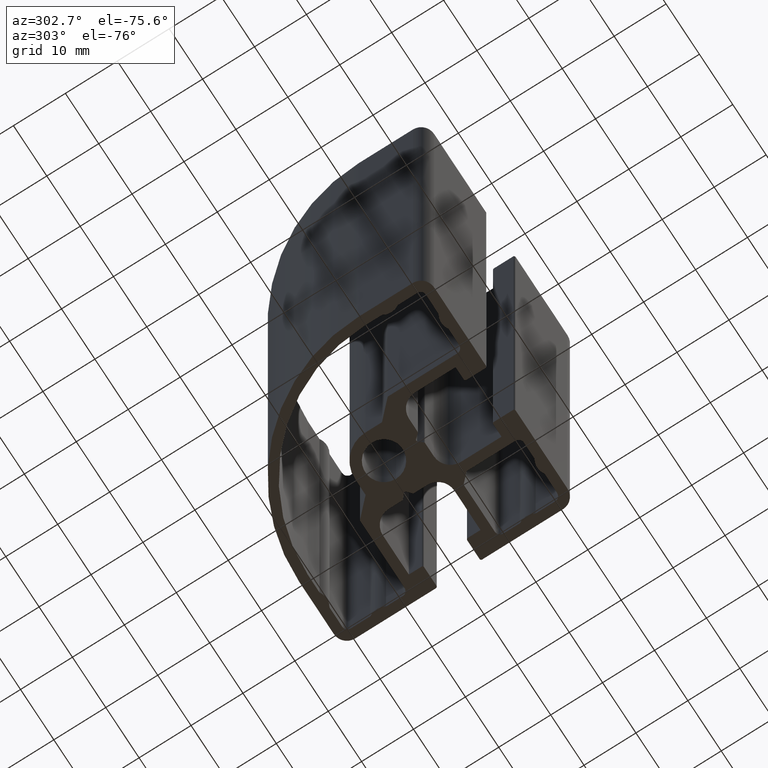
[diagram: clean part render]
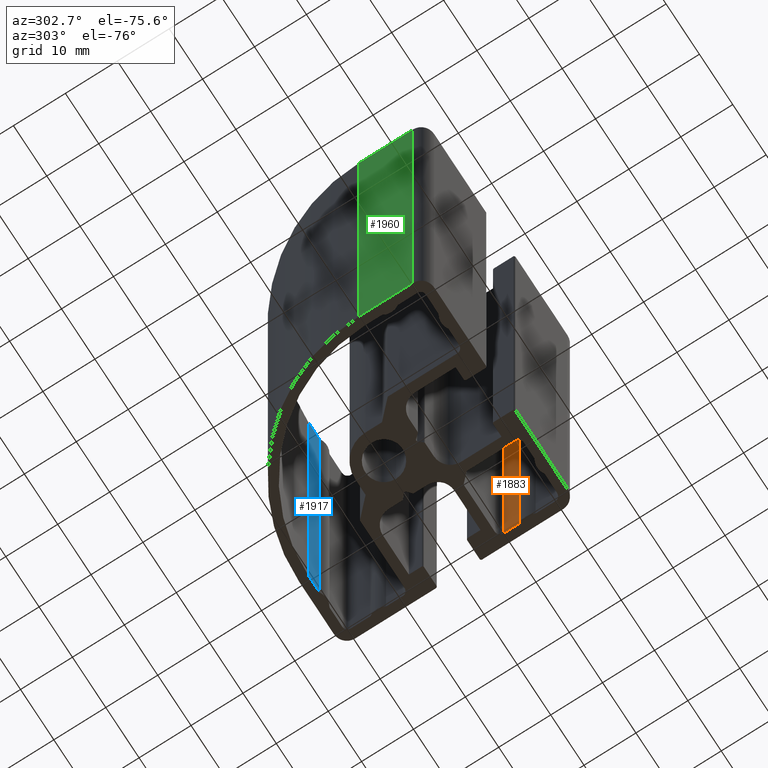
[diagram: same view with three faces highlighted in distinct colors, each labeled with its STEP entity id]
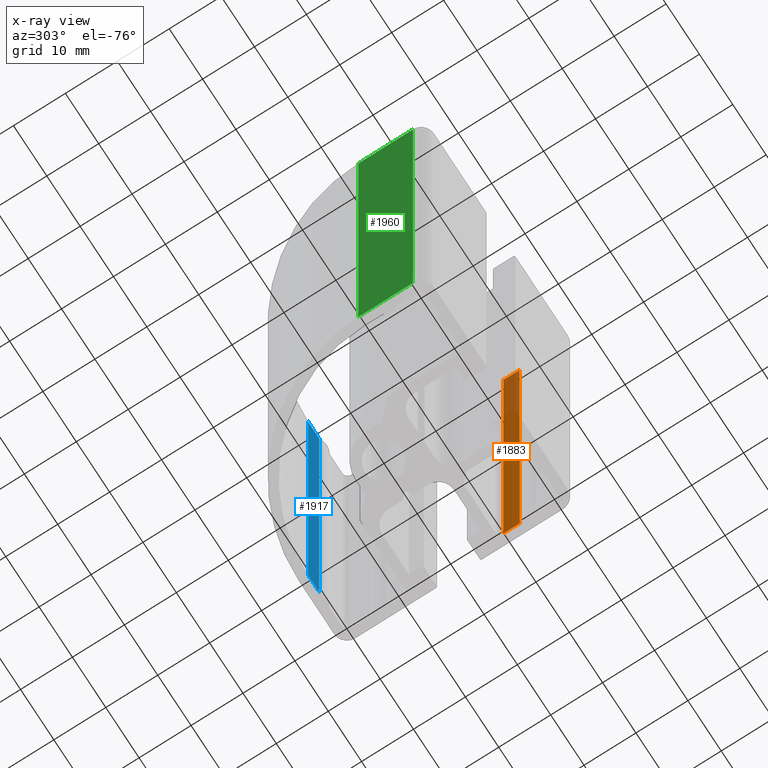
[diagram: x-ray of the same camera — body ghosted, the three highlighted faces saturated]
A machine part, auxiliary view with three faces highlighted in distinct colors.
The next image is the same camera in x-ray (body ghosted, the three faces saturated) — at least one of them is partly hidden behind the body in this view.
Their STEP definitions:

[orange] entity #1883 — the highlighted planar face has unit normal (1, 0, 0).
#28=PLANE('',#1998);
#84=FACE_OUTER_BOUND('',#183,.T.);
#183=EDGE_LOOP('',(#1292,#1293,#1294,#1295));
#301=LINE('',#2841,#491);
#302=LINE('',#2844,#492);
#303=LINE('',#2846,#493);
#304=LINE('',#2847,#494);
#491=VECTOR('',#2251,100.);
#492=VECTOR('',#2254,3.12821757232699);
#493=VECTOR('',#2255,3.12821757232699);
#494=VECTOR('',#2256,100.);
#782=VERTEX_POINT('',#2837);
#783=VERTEX_POINT('',#2839);
#784=VERTEX_POINT('',#2843);
#785=VERTEX_POINT('',#2845);
#989=EDGE_CURVE('',#783,#782,#301,.T.);
#990=EDGE_CURVE('',#782,#784,#302,.T.);
#991=EDGE_CURVE('',#785,#783,#303,.T.);
#992=EDGE_CURVE('',#785,#784,#304,.T.);
#1292=ORIENTED_EDGE('',*,*,#990,.F.);
#1293=ORIENTED_EDGE('',*,*,#989,.F.);
#1294=ORIENTED_EDGE('',*,*,#991,.F.);
#1295=ORIENTED_EDGE('',*,*,#992,.T.);
#1883=ADVANCED_FACE('',(#84),#28,.F.);
#1998=AXIS2_PLACEMENT_3D('',#2842,#2252,#2253);
#2251=DIRECTION('',(0.,0.,1.));
#2252=DIRECTION('center_axis',(1.,0.,0.));
#2253=DIRECTION('ref_axis',(0.,1.,0.));
#2254=DIRECTION('',(0.,-1.,0.));
#2255=DIRECTION('',(0.,1.,0.));
#2256=DIRECTION('',(0.,0.,1.));
#2837=CARTESIAN_POINT('',(20.7,-9.700000000002,100.));
#2839=CARTESIAN_POINT('',(20.7,-9.700000000002,0.));
#2841=CARTESIAN_POINT('',(20.7,-9.700000000002,0.));
#2842=CARTESIAN_POINT('Origin',(20.7,-12.828217572329,0.));
#2843=CARTESIAN_POINT('',(20.7,-12.828217572329,100.));
#2844=CARTESIAN_POINT('',(20.7,-6.41410878616449,100.));
#2845=CARTESIAN_POINT('',(20.7,-12.828217572329,0.));
#2846=CARTESIAN_POINT('',(20.7,-6.41410878616449,0.));
#2847=CARTESIAN_POINT('',(20.7,-12.828217572329,0.));

[blue] entity #1917 — the highlighted planar face has unit normal (-0, 1, 0).
#42=PLANE('',#2072);
#118=FACE_OUTER_BOUND('',#217,.T.);
#217=EDGE_LOOP('',(#1428,#1429,#1430,#1431));
#307=LINE('',#2865,#497);
#363=LINE('',#3044,#553);
#364=LINE('',#3047,#554);
#365=LINE('',#3048,#555);
#497=VECTOR('',#2277,100.);
#553=VECTOR('',#2459,100.);
#554=VECTOR('',#2464,3.32821757233886);
#555=VECTOR('',#2465,3.32821757233886);
#789=VERTEX_POINT('',#2859);
#791=VERTEX_POINT('',#2863);
#850=VERTEX_POINT('',#3041);
#851=VERTEX_POINT('',#3043);
#1001=EDGE_CURVE('',#791,#789,#307,.T.);
#1090=EDGE_CURVE('',#851,#850,#363,.T.);
#1092=EDGE_CURVE('',#789,#850,#364,.T.);
#1093=EDGE_CURVE('',#851,#791,#365,.T.);
#1428=ORIENTED_EDGE('',*,*,#1092,.F.);
#1429=ORIENTED_EDGE('',*,*,#1001,.F.);
#1430=ORIENTED_EDGE('',*,*,#1093,.F.);
#1431=ORIENTED_EDGE('',*,*,#1090,.T.);
#1917=ADVANCED_FACE('',(#118),#42,.F.);
#2072=AXIS2_PLACEMENT_3D('',#3046,#2462,#2463);
#2277=DIRECTION('',(0.,0.,1.));
#2459=DIRECTION('',(0.,0.,1.));
#2462=DIRECTION('center_axis',(-3.73608323540686E-14,1.,0.));
#2463=DIRECTION('ref_axis',(-1.,-3.73034936274053E-14,0.));
#2464=DIRECTION('',(1.,3.73608323540686E-14,0.));
#2465=DIRECTION('',(-1.,-3.73608323540686E-14,0.));
#2859=CARTESIAN_POINT('',(9.49999999999011,20.6999999999999,100.));
#2863=CARTESIAN_POINT('',(9.49999999999011,20.6999999999999,0.));
#2865=CARTESIAN_POINT('',(9.49999999999011,20.6999999999999,0.));
#3041=CARTESIAN_POINT('',(12.828217572329,20.7,100.));
#3043=CARTESIAN_POINT('',(12.828217572329,20.7,0.));
#3044=CARTESIAN_POINT('',(12.828217572329,20.7,0.));
#3046=CARTESIAN_POINT('Origin',(12.828217572329,20.7,0.));
#3047=CARTESIAN_POINT('',(6.4141087861641,20.6999999999998,100.));
#3048=CARTESIAN_POINT('',(6.4141087861641,20.6999999999998,0.));

[green] entity #1960 — the highlighted planar face has unit normal (-1, 0, 0).
#65=PLANE('',#2155);
#161=FACE_OUTER_BOUND('',#261,.T.);
#261=EDGE_LOOP('',(#1598,#1599,#1600,#1601));
#447=LINE('',#3296,#637);
#454=LINE('',#3311,#644);
#455=LINE('',#3313,#645);
#456=LINE('',#3314,#646);
#637=VECTOR('',#2707,100.);
#644=VECTOR('',#2720,10.5);
#645=VECTOR('',#2721,100.);
#646=VECTOR('',#2722,10.5);
#935=VERTEX_POINT('',#3290);
#937=VERTEX_POINT('',#3294);
#942=VERTEX_POINT('',#3310);
#943=VERTEX_POINT('',#3312);
#1215=EDGE_CURVE('',#935,#937,#447,.T.);
#1222=EDGE_CURVE('',#942,#937,#454,.T.);
#1223=EDGE_CURVE('',#942,#943,#455,.T.);
#1224=EDGE_CURVE('',#943,#935,#456,.T.);
#1598=ORIENTED_EDGE('',*,*,#1215,.T.);
#1599=ORIENTED_EDGE('',*,*,#1222,.F.);
#1600=ORIENTED_EDGE('',*,*,#1223,.T.);
#1601=ORIENTED_EDGE('',*,*,#1224,.T.);
#1960=ADVANCED_FACE('',(#161),#65,.T.);
#2155=AXIS2_PLACEMENT_3D('',#3309,#2718,#2719);
#2707=DIRECTION('',(0.,0.,-1.));
#2718=DIRECTION('center_axis',(-1.,2.22044604925031E-16,0.));
#2719=DIRECTION('ref_axis',(-3.5527136788005E-16,-1.,0.));
#2720=DIRECTION('',(2.22044604925031E-16,1.,0.));
#2721=DIRECTION('',(0.,0.,1.));
#2722=DIRECTION('',(2.22044604925031E-16,1.,0.));
#3290=CARTESIAN_POINT('',(-22.5,-9.5,100.));
#3294=CARTESIAN_POINT('',(-22.5,-9.5,0.));
#3296=CARTESIAN_POINT('',(-22.5,-9.49999999999999,0.));
#3309=CARTESIAN_POINT('Origin',(-22.5,20.,0.));
#3310=CARTESIAN_POINT('',(-22.5,-20.,0.));
#3311=CARTESIAN_POINT('',(-22.5,10.,0.));
#3312=CARTESIAN_POINT('',(-22.5,-20.,100.));
#3313=CARTESIAN_POINT('',(-22.5,-20.,0.));
#3314=CARTESIAN_POINT('',(-22.5,10.,100.));